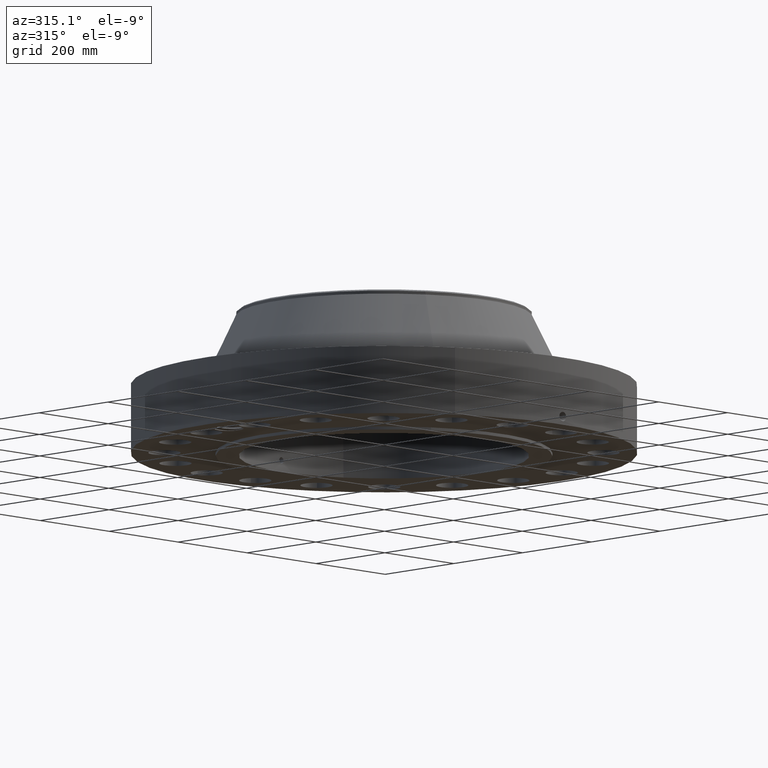
[diagram: clean part render]
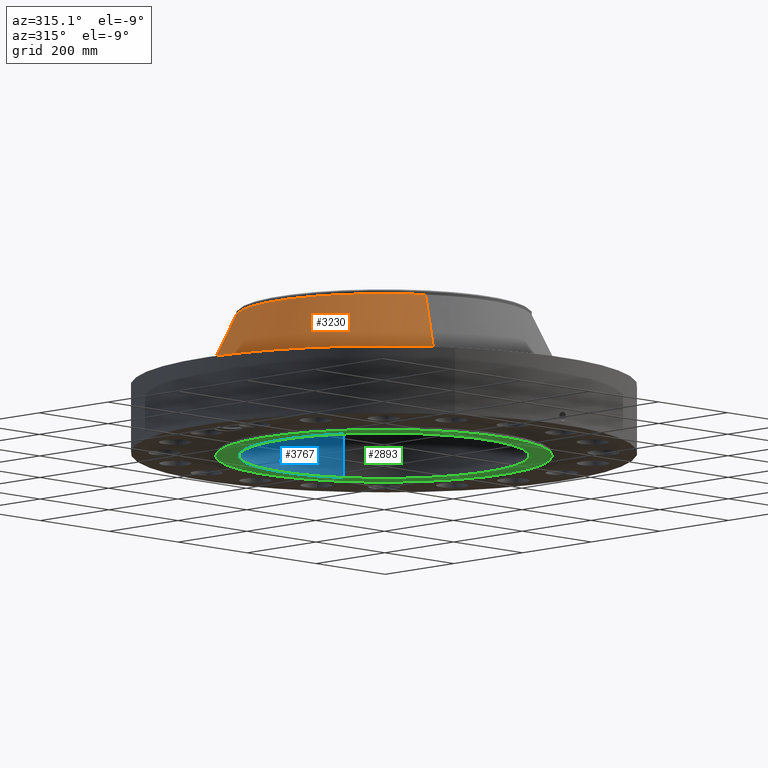
[diagram: same view with three faces highlighted in distinct colors, each labeled with its STEP entity id]
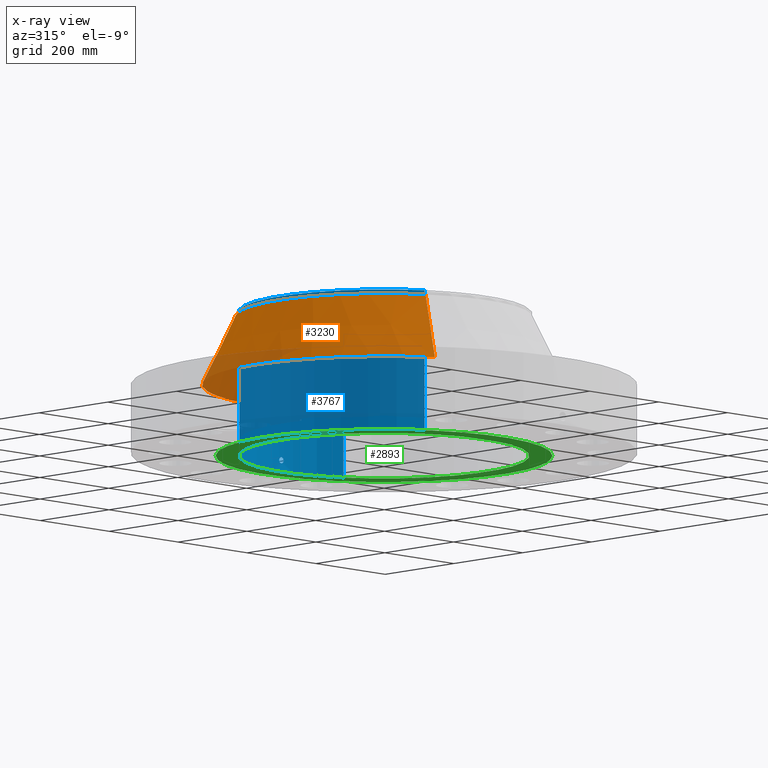
[diagram: x-ray of the same camera — body ghosted, the three highlighted faces saturated]
A machine part, auxiliary view with three faces highlighted in distinct colors.
The next image is the same camera in x-ray (body ghosted, the three faces saturated) — at least one of them is partly hidden behind the body in this view.
Their STEP definitions:

[orange] entity #3230 — the highlighted conical surface has half-angle 26.024 deg.
#2543=AXIS2_PLACEMENT_3D('Circle Axis2P3D',#2541,#2542,$) ;
#3191=AXIS2_PLACEMENT_3D('Cone Axis2P3D',#3188,#3189,#3190) ;
#3221=AXIS2_PLACEMENT_3D('Circle Axis2P3D',#3219,#3220,$) ;
#2519=CARTESIAN_POINT('Vertex',(7.0557613534,12.9154845247,5.81735044576)) ;
#2526=CARTESIAN_POINT('Vertex',(-7.0557613534,-12.9154845247,5.81735044576)) ;
#2541=CARTESIAN_POINT('Axis2P3D Location',(0.,0.,5.81735044576)) ;
#3188=CARTESIAN_POINT('Axis2P3D Location',(0.,0.,11.3823672285)) ;
#3193=CARTESIAN_POINT('Line Origine',(6.40443390834,11.7232376337,8.59985883712)) ;
#3197=CARTESIAN_POINT('Vertex',(5.75310646327,10.5309907427,11.3823672285)) ;
#3204=CARTESIAN_POINT('Vertex',(-5.75310646327,-10.5309907427,11.3823672285)) ;
#3207=CARTESIAN_POINT('Line Origine',(-6.40443390834,-11.7232376337,8.59985883712)) ;
#3219=CARTESIAN_POINT('Axis2P3D Location',(0.,0.,11.3823672285)) ;
#2542=DIRECTION('Axis2P3D Direction',(0.,0.,-0.0393700787402)) ;
#3189=DIRECTION('Axis2P3D Direction',(0.,0.,-0.0393700787402)) ;
#3190=DIRECTION('Axis2P3D XDirection',(-0.0188750212049,-0.0345504945626,0.)) ;
#3194=DIRECTION('Vector Direction',(0.00828134544355,0.0151589011537,-0.0353783851167)) ;
#3208=DIRECTION('Vector Direction',(-0.00828134544355,-0.0151589011537,-0.0353783851167)) ;
#3220=DIRECTION('Axis2P3D Direction',(0.,0.,-0.0393700787402)) ;
#3195=VECTOR('Line Direction',#3194,0.0393700787402) ;
#3209=VECTOR('Line Direction',#3208,0.0393700787402) ;
#3225=ORIENTED_EDGE('',*,*,#2545,.F.) ;
#3226=ORIENTED_EDGE('',*,*,#3211,.T.) ;
#3227=ORIENTED_EDGE('',*,*,#3223,.T.) ;
#3228=ORIENTED_EDGE('',*,*,#3199,.F.) ;
#3230=ADVANCED_FACE('PartBody',(#3229),#3192,.T.) ;
#2544=CIRCLE('generated circle',#2543,14.7171161844) ;
#3222=CIRCLE('generated circle',#3221,12.) ;
#3192=CONICAL_SURFACE('Cone',#3191,12.,0.454203028149) ;
#2545=EDGE_CURVE('',#2527,#2520,#2544,.T.) ;
#3199=EDGE_CURVE('',#2520,#3198,#3196,.F.) ;
#3211=EDGE_CURVE('',#2527,#3205,#3210,.F.) ;
#3223=EDGE_CURVE('',#3205,#3198,#3222,.T.) ;
#3224=EDGE_LOOP('',(#3225,#3226,#3227,#3228)) ;
#3229=FACE_OUTER_BOUND('',#3224,.T.) ;
#3196=LINE('Line',#3193,#3195) ;
#3210=LINE('Line',#3207,#3209) ;
#2520=VERTEX_POINT('',#2519) ;
#2527=VERTEX_POINT('',#2526) ;
#3198=VERTEX_POINT('',#3197) ;
#3205=VERTEX_POINT('',#3204) ;

[blue] entity #3767 — the highlighted cylindrical surface (partial cylindrical patch) has radius 298.45 mm, axis along (0, 0, -1).
#2886=AXIS2_PLACEMENT_3D('Circle Axis2P3D',#2884,#2885,$) ;
#3644=AXIS2_PLACEMENT_3D('Cylinder Axis2P3D',#3641,#3642,#3643) ;
#3716=AXIS2_PLACEMENT_3D('Circle Axis2P3D',#3714,#3715,$) ;
#2879=CARTESIAN_POINT('Vertex',(5.63325007862,10.3115951023,-7.16137560451E-014)) ;
#2881=CARTESIAN_POINT('Vertex',(-5.63325007862,-10.3115951023,-7.16137560451E-014)) ;
#2884=CARTESIAN_POINT('Axis2P3D Location',(0.,0.,0.)) ;
#3641=CARTESIAN_POINT('Axis2P3D Location',(0.,0.,5.87500000002)) ;
#3650=CARTESIAN_POINT('Vertex',(5.63325007862,10.3115951023,11.75)) ;
#3652=CARTESIAN_POINT('Vertex',(-5.63325007862,-10.3115951023,11.75)) ;
#3655=CARTESIAN_POINT('Line Origine',(5.63325007862,10.3115951023,5.87500000002)) ;
#3660=CARTESIAN_POINT('Line Origine',(-5.63325007862,-10.3115951023,5.87500000002)) ;
#3714=CARTESIAN_POINT('Axis2P3D Location',(0.,0.,11.75)) ;
#3726=CARTESIAN_POINT('Control Point',(0.219395640473,11.7479515471,1.05985638466)) ;
#3727=CARTESIAN_POINT('Control Point',(0.194442679764,11.7484175493,1.10553247285)) ;
#3728=CARTESIAN_POINT('Control Point',(0.157603763999,11.7490392503,1.14471355978)) ;
#3729=CARTESIAN_POINT('Control Point',(0.111104120814,11.7496439188,1.1732447198)) ;
#3730=CARTESIAN_POINT('Control Point',(0.033667969105,11.7501249938,1.19588336637)) ;
#3731=CARTESIAN_POINT('Control Point',(-0.0446773464082,11.7499587099,1.18805551316)) ;
#3732=CARTESIAN_POINT('Control Point',(-0.0703088755139,11.7498296258,1.18204177351)) ;
#3733=CARTESIAN_POINT('Control Point',(-0.143967207881,11.7492592335,1.15420569385)) ;
#3734=CARTESIAN_POINT('Control Point',(-0.203256242332,11.7483282852,1.0994837256)) ;
#3735=CARTESIAN_POINT('Control Point',(-0.232218955563,11.7477178083,1.05323928681)) ;
#3736=CARTESIAN_POINT('Control Point',(-0.255842092382,11.7472161184,0.975094611782)) ;
#3737=CARTESIAN_POINT('Control Point',(-0.248279973949,11.7473765859,0.895735190171)) ;
#3738=CARTESIAN_POINT('Control Point',(-0.242046264037,11.7475107794,0.869177195306)) ;
#3739=CARTESIAN_POINT('Control Point',(-0.232313749316,11.7477102986,0.843790054976)) ;
#3740=CARTESIAN_POINT('Control Point',(-0.219395640473,11.7479515471,0.820143615352)) ;
#3741=CARTESIAN_POINT('Vertex',(0.219395640473,11.7479515471,1.05985638466)) ;
#3743=CARTESIAN_POINT('Vertex',(-0.219395640473,11.7479515471,0.820143615352)) ;
#3747=CARTESIAN_POINT('Control Point',(-0.219395640473,11.7479515471,0.820143615352)) ;
#3748=CARTESIAN_POINT('Control Point',(-0.194442679763,11.7484175493,0.774467527152)) ;
#3749=CARTESIAN_POINT('Control Point',(-0.157603763995,11.7490392503,0.735286440223)) ;
#3750=CARTESIAN_POINT('Control Point',(-0.111104120806,11.7496439188,0.706755280204)) ;
#3751=CARTESIAN_POINT('Control Point',(-0.0336679690919,11.7501249938,0.684116633635)) ;
#3752=CARTESIAN_POINT('Control Point',(0.044677346425,11.7499587099,0.691944486853)) ;
#3753=CARTESIAN_POINT('Control Point',(0.0703088755242,11.7498296258,0.697958226497)) ;
#3754=CARTESIAN_POINT('Control Point',(0.143967207931,11.7492592335,0.725794306177)) ;
#3755=CARTESIAN_POINT('Control Point',(0.203256242405,11.7483282852,0.78051627448)) ;
#3756=CARTESIAN_POINT('Control Point',(0.232218955545,11.7477178083,0.826760713123)) ;
#3757=CARTESIAN_POINT('Control Point',(0.255842092401,11.7472161184,0.904905388243)) ;
#3758=CARTESIAN_POINT('Control Point',(0.248279973938,11.7473765859,0.984264809942)) ;
#3759=CARTESIAN_POINT('Control Point',(0.24204626407,11.7475107794,1.01082280462)) ;
#3760=CARTESIAN_POINT('Control Point',(0.232313749338,11.7477102986,1.03620994499)) ;
#3761=CARTESIAN_POINT('Control Point',(0.219395640473,11.7479515471,1.05985638466)) ;
#2885=DIRECTION('Axis2P3D Direction',(0.,0.,-0.0393700787402)) ;
#3642=DIRECTION('Axis2P3D Direction',(0.,0.,-0.0393700787402)) ;
#3643=DIRECTION('Axis2P3D XDirection',(-0.0188750212049,-0.0345504945626,0.)) ;
#3656=DIRECTION('Vector Direction',(0.,0.,-0.0393700787402)) ;
#3661=DIRECTION('Vector Direction',(0.,0.,-0.0393700787402)) ;
#3715=DIRECTION('Axis2P3D Direction',(0.,0.,-0.0393700787402)) ;
#3657=VECTOR('Line Direction',#3656,0.0393700787402) ;
#3662=VECTOR('Line Direction',#3661,0.0393700787402) ;
#3720=ORIENTED_EDGE('',*,*,#3718,.F.) ;
#3721=ORIENTED_EDGE('',*,*,#3664,.T.) ;
#3722=ORIENTED_EDGE('',*,*,#2888,.T.) ;
#3723=ORIENTED_EDGE('',*,*,#3659,.F.) ;
#3764=ORIENTED_EDGE('',*,*,#3745,.F.) ;
#3765=ORIENTED_EDGE('',*,*,#3762,.F.) ;
#3766=FACE_BOUND('',#3763,.T.) ;
#3767=ADVANCED_FACE('PartBody',(#3724,#3766),#3645,.F.) ;
#3725=B_SPLINE_CURVE_WITH_KNOTS('',5,(#3726,#3727,#3728,#3729,#3730,#3731,#3732,#3733,#3734,#3735,#3736,#3737,#3738,#3739,#3740),.UNSPECIFIED.,.F.,.U.,(6,3,3,3,6),(0.,9.34839475772,14.0230256342,23.373073552,28.2127229383),.UNSPECIFIED.) ;
#3746=B_SPLINE_CURVE_WITH_KNOTS('',5,(#3747,#3748,#3749,#3750,#3751,#3752,#3753,#3754,#3755,#3756,#3757,#3758,#3759,#3760,#3761),.UNSPECIFIED.,.F.,.U.,(6,3,3,3,6),(0.,9.34839475818,14.023025635,23.3730735603,28.2127229549),.UNSPECIFIED.) ;
#2887=CIRCLE('generated circle',#2886,11.75) ;
#3717=CIRCLE('generated circle',#3716,11.75) ;
#3645=CYLINDRICAL_SURFACE('generated cylinder',#3644,11.75) ;
#2888=EDGE_CURVE('',#2882,#2880,#2887,.T.) ;
#3659=EDGE_CURVE('',#3651,#2880,#3658,.T.) ;
#3664=EDGE_CURVE('',#3653,#2882,#3663,.T.) ;
#3718=EDGE_CURVE('',#3653,#3651,#3717,.T.) ;
#3745=EDGE_CURVE('',#3742,#3744,#3725,.T.) ;
#3762=EDGE_CURVE('',#3744,#3742,#3746,.T.) ;
#3719=EDGE_LOOP('',(#3720,#3721,#3722,#3723)) ;
#3763=EDGE_LOOP('',(#3764,#3765)) ;
#3724=FACE_OUTER_BOUND('',#3719,.T.) ;
#3658=LINE('Line',#3655,#3657) ;
#3663=LINE('Line',#3660,#3662) ;
#2880=VERTEX_POINT('',#2879) ;
#2882=VERTEX_POINT('',#2881) ;
#3651=VERTEX_POINT('',#3650) ;
#3653=VERTEX_POINT('',#3652) ;
#3742=VERTEX_POINT('',#3741) ;
#3744=VERTEX_POINT('',#3743) ;

[green] entity #2893 — the highlighted planar face has unit normal (0, 0, -1).
#1572=AXIS2_PLACEMENT_3D('Circle Axis2P3D',#1570,#1571,$) ;
#1598=AXIS2_PLACEMENT_3D('Circle Axis2P3D',#1596,#1597,$) ;
#2869=AXIS2_PLACEMENT_3D('Plane Axis2P3D',#2866,#2867,#2868) ;
#2877=AXIS2_PLACEMENT_3D('Circle Axis2P3D',#2875,#2876,$) ;
#2886=AXIS2_PLACEMENT_3D('Circle Axis2P3D',#2884,#2885,$) ;
#1570=CARTESIAN_POINT('Axis2P3D Location',(0.,0.,1.1189649382E-015)) ;
#1574=CARTESIAN_POINT('Vertex',(6.53217296351,11.9570624058,1.1189649382E-015)) ;
#1576=CARTESIAN_POINT('Vertex',(-6.53217296351,-11.9570624058,1.1189649382E-015)) ;
#1596=CARTESIAN_POINT('Axis2P3D Location',(0.,0.,1.1189649382E-015)) ;
#2866=CARTESIAN_POINT('Axis2P3D Location',(0.,11.75,0.)) ;
#2875=CARTESIAN_POINT('Axis2P3D Location',(0.,0.,0.)) ;
#2879=CARTESIAN_POINT('Vertex',(5.63325007862,10.3115951023,-7.16137560451E-014)) ;
#2881=CARTESIAN_POINT('Vertex',(-5.63325007862,-10.3115951023,-7.16137560451E-014)) ;
#2884=CARTESIAN_POINT('Axis2P3D Location',(0.,0.,0.)) ;
#1571=DIRECTION('Axis2P3D Direction',(0.,0.,-0.0393700787402)) ;
#1597=DIRECTION('Axis2P3D Direction',(0.,0.,-0.0393700787402)) ;
#2867=DIRECTION('Axis2P3D Direction',(0.,0.,-0.0393700787402)) ;
#2868=DIRECTION('Axis2P3D XDirection',(0.0393700787402,0.,0.)) ;
#2876=DIRECTION('Axis2P3D Direction',(0.,0.,-0.0393700787402)) ;
#2885=DIRECTION('Axis2P3D Direction',(0.,0.,-0.0393700787402)) ;
#2872=ORIENTED_EDGE('',*,*,#1600,.T.) ;
#2873=ORIENTED_EDGE('',*,*,#1578,.T.) ;
#2890=ORIENTED_EDGE('',*,*,#2883,.F.) ;
#2891=ORIENTED_EDGE('',*,*,#2888,.F.) ;
#2892=FACE_BOUND('',#2889,.T.) ;
#2893=ADVANCED_FACE('PartBody',(#2874,#2892),#2870,.T.) ;
#1573=CIRCLE('generated circle',#1572,13.6250000001) ;
#1599=CIRCLE('generated circle',#1598,13.6250000001) ;
#2878=CIRCLE('generated circle',#2877,11.75) ;
#2887=CIRCLE('generated circle',#2886,11.75) ;
#1578=EDGE_CURVE('',#1575,#1577,#1573,.T.) ;
#1600=EDGE_CURVE('',#1577,#1575,#1599,.T.) ;
#2883=EDGE_CURVE('',#2880,#2882,#2878,.T.) ;
#2888=EDGE_CURVE('',#2882,#2880,#2887,.T.) ;
#2871=EDGE_LOOP('',(#2872,#2873)) ;
#2889=EDGE_LOOP('',(#2890,#2891)) ;
#2874=FACE_OUTER_BOUND('',#2871,.T.) ;
#2870=PLANE('',#2869) ;
#1575=VERTEX_POINT('',#1574) ;
#1577=VERTEX_POINT('',#1576) ;
#2880=VERTEX_POINT('',#2879) ;
#2882=VERTEX_POINT('',#2881) ;